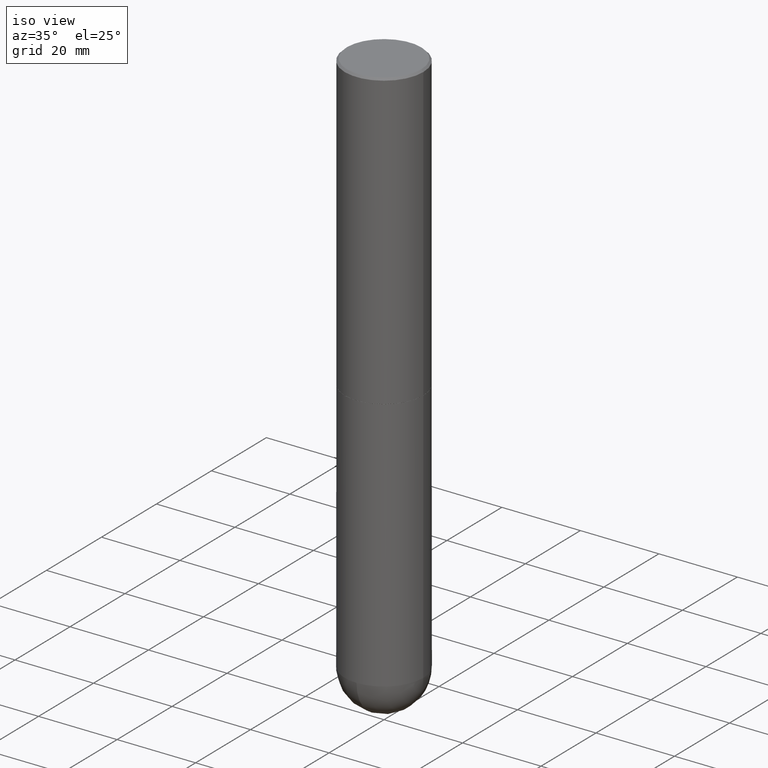
[diagram: clean part render]
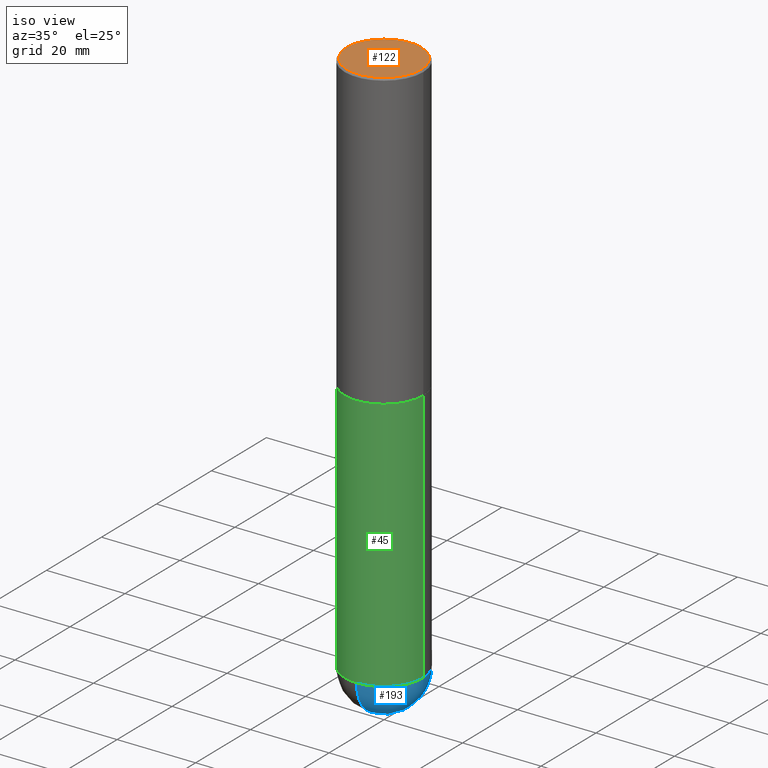
[diagram: same view with three faces highlighted in distinct colors, each labeled with its STEP entity id]
A machine part, iso view with three faces highlighted in distinct colors.
Their STEP definitions:

[orange] entity #122 — the highlighted planar face has unit normal (0, -0, -1).
#26 = EDGE_LOOP ( 'NONE', ( #404, #149 ) ) ;
#29 = EDGE_CURVE ( 'NONE', #170, #147, #301, .T. ) ;
#44 = CARTESIAN_POINT ( 'NONE',  ( 2.087702828670439561E-45, -2.980686340760894291E-31, -8.537024980200822558E-17 ) ) ;
#65 = PLANE ( 'NONE',  #356 ) ;
#89 = FACE_OUTER_BOUND ( 'NONE', #26, .T. ) ;
#90 = CIRCLE ( 'NONE', #127, 0.3737000000000000877 ) ;
#122 = ADVANCED_FACE ( 'NONE', ( #89 ), #65, .F. ) ;
#127 = AXIS2_PLACEMENT_3D ( 'NONE', #274, #233, #271 ) ;
#147 = VERTEX_POINT ( 'NONE', #295 ) ;
#149 = ORIENTED_EDGE ( 'NONE', *, *, #29, .T. ) ;
#170 = VERTEX_POINT ( 'NONE', #355 ) ;
#173 = DIRECTION ( 'NONE',  ( 1.000000000000000000, -6.982962677686266711E-15, 4.877734241229874566E-29 ) ) ;
#223 = CARTESIAN_POINT ( 'NONE',  ( 2.609533152651358198E-15, 0.3737000000000000877, -1.347451701226688099E-15 ) ) ;
#233 = DIRECTION ( 'NONE',  ( -2.445468806185136597E-29, 3.491481338843145583E-15, 1.000000000000000000 ) ) ;
#257 = DIRECTION ( 'NONE',  ( -2.445468806185136597E-29, 3.491481338843145583E-15, 1.000000000000000000 ) ) ;
#271 = DIRECTION ( 'NONE',  ( 1.000000000000000000, -6.982962677686266711E-15, 4.877734241229874566E-29 ) ) ;
#274 = CARTESIAN_POINT ( 'NONE',  ( 2.087702828670439561E-45, -2.980686340760894291E-31, -8.537024980200822558E-17 ) ) ;
#289 = EDGE_CURVE ( 'NONE', #147, #170, #90, .T. ) ;
#295 = CARTESIAN_POINT ( 'NONE',  ( -0.3737000000000000877, 2.644447966039789058E-15, -8.537024980202659124E-17 ) ) ;
#301 = CIRCLE ( 'NONE', #383, 0.3737000000000000877 ) ;
#346 = DIRECTION ( 'NONE',  ( -1.000000000000000000, 6.982962677686265922E-15, -4.876176775795935793E-29 ) ) ;
#355 = CARTESIAN_POINT ( 'NONE',  ( 0.3737000000000000877, -2.667287895133368753E-15, -8.537024980198977363E-17 ) ) ;
#356 = AXIS2_PLACEMENT_3D ( 'NONE', #223, #379, #346 ) ;
#379 = DIRECTION ( 'NONE',  ( 2.438088387897960049E-29, -3.491481338843145188E-15, -1.000000000000000000 ) ) ;
#383 = AXIS2_PLACEMENT_3D ( 'NONE', #44, #257, #173 ) ;
#404 = ORIENTED_EDGE ( 'NONE', *, *, #289, .T. ) ;

[blue] entity #193 — the highlighted spherical surface has radius 10 mm.
#6 = DIRECTION ( 'NONE',  ( 6.982962677686265922E-15, 1.000000000000000000, -2.775563112689116301E-15 ) ) ;
#10 = CARTESIAN_POINT ( 'NONE',  ( 1.412743020541493694E-28, -2.106901824243703318E-14, -5.905499999999999972 ) ) ;
#13 = EDGE_CURVE ( 'NONE', #343, #245, #139, .T. ) ;
#50 = ORIENTED_EDGE ( 'NONE', *, *, #322, .F. ) ;
#53 = DIRECTION ( 'NONE',  ( -1.000000000000000000, 7.105427357601001070E-15, -4.926315508542082329E-29 ) ) ;
#56 = VERTEX_POINT ( 'NONE', #319 ) ;
#64 = EDGE_CURVE ( 'NONE', #143, #56, #412, .T. ) ;
#83 = CIRCLE ( 'NONE', #107, 0.3937000000000001054 ) ;
#94 = CARTESIAN_POINT ( 'NONE',  ( 0.3937000000000001054, -1.752601430252398275E-14, -5.511800000000000033 ) ) ;
#95 = AXIS2_PLACEMENT_3D ( 'NONE', #407, #53, #283 ) ;
#107 = AXIS2_PLACEMENT_3D ( 'NONE', #328, #166, #162 ) ;
#139 = CIRCLE ( 'NONE', #95, 0.3937000000000001054 ) ;
#143 = VERTEX_POINT ( 'NONE', #94 ) ;
#148 = DIRECTION ( 'NONE',  ( 1.000000000000000000, -6.982962677686266711E-15, 0.000000000000000000 ) ) ;
#154 = AXIS2_PLACEMENT_3D ( 'NONE', #177, #381, #148 ) ;
#162 = DIRECTION ( 'NONE',  ( 6.982962677686265133E-15, 1.000000000000000000, 0.000000000000000000 ) ) ;
#166 = DIRECTION ( 'NONE',  ( 1.000000000000000000, -6.982962677686265922E-15, 4.883557194083112340E-29 ) ) ;
#177 = CARTESIAN_POINT ( 'NONE',  ( 1.347893496593123646E-28, -1.924434684343564878E-14, -5.511800000000000033 ) ) ;
#185 = ORIENTED_EDGE ( 'NONE', *, *, #64, .F. ) ;
#193 = ADVANCED_FACE ( 'NONE', ( #299 ), #204, .T. ) ;
#199 = EDGE_CURVE ( 'NONE', #343, #56, #83, .T. ) ;
#204 = SPHERICAL_SURFACE ( 'NONE', #335, 0.3937000000000001054 ) ;
#228 = EDGE_LOOP ( 'NONE', ( #400, #369, #185, #50 ) ) ;
#236 = DIRECTION ( 'NONE',  ( -2.445468806185136597E-29, 3.491481338843145583E-15, 1.000000000000000000 ) ) ;
#245 = VERTEX_POINT ( 'NONE', #384 ) ;
#270 = CARTESIAN_POINT ( 'NONE',  ( 1.314781518801735134E-28, -1.971852921157570065E-14, -5.511800000000000033 ) ) ;
#283 = DIRECTION ( 'NONE',  ( -7.105427357601001070E-15, -1.000000000000000000, 0.000000000000000000 ) ) ;
#299 = FACE_OUTER_BOUND ( 'NONE', #228, .T. ) ;
#300 = CARTESIAN_POINT ( 'NONE',  ( 1.347893496593123646E-28, -1.924434684343564878E-14, -5.511800000000000033 ) ) ;
#319 = CARTESIAN_POINT ( 'NONE',  ( 2.749192406205216928E-15, 0.3936999999999805655, -5.511800000000000921 ) ) ;
#322 = EDGE_CURVE ( 'NONE', #245, #143, #390, .T. ) ;
#328 = CARTESIAN_POINT ( 'NONE',  ( 1.314781518801735134E-28, -1.971852921157570065E-14, -5.511800000000000033 ) ) ;
#332 = DIRECTION ( 'NONE',  ( 1.000000000000000000, -6.982962677686266711E-15, 0.000000000000000000 ) ) ;
#335 = AXIS2_PLACEMENT_3D ( 'NONE', #270, #389, #6 ) ;
#343 = VERTEX_POINT ( 'NONE', #10 ) ;
#369 = ORIENTED_EDGE ( 'NONE', *, *, #199, .T. ) ;
#370 = AXIS2_PLACEMENT_3D ( 'NONE', #300, #236, #332 ) ;
#381 = DIRECTION ( 'NONE',  ( -2.445468806185136597E-29, 3.491481338843145583E-15, 1.000000000000000000 ) ) ;
#384 = CARTESIAN_POINT ( 'NONE',  ( -2.797406750687381075E-15, -0.3937000000000196454, -5.511799999999999145 ) ) ;
#389 = DIRECTION ( 'NONE',  ( -1.000000000000000000, 6.982962677686265922E-15, -4.883557194083112340E-29 ) ) ;
#390 = CIRCLE ( 'NONE', #370, 0.3937000000000001054 ) ;
#400 = ORIENTED_EDGE ( 'NONE', *, *, #13, .F. ) ;
#407 = CARTESIAN_POINT ( 'NONE',  ( 1.314781518801735134E-28, -1.971852921157570065E-14, -5.511800000000000033 ) ) ;
#412 = CIRCLE ( 'NONE', #154, 0.3937000000000001054 ) ;

[green] entity #45 — the highlighted cylindrical surface (partial cylindrical patch) has radius 10 mm, axis along (-0, 0, 1).
#1 = CYLINDRICAL_SURFACE ( 'NONE', #284, 0.3937000000000001054 ) ;
#28 = VECTOR ( 'NONE', #352, 39.37007874015748143 ) ;
#38 = DIRECTION ( 'NONE',  ( 1.000000000000000000, -6.982962677686267499E-15, 0.000000000000000000 ) ) ;
#41 = AXIS2_PLACEMENT_3D ( 'NONE', #157, #240, #38 ) ;
#45 = ADVANCED_FACE ( 'NONE', ( #214 ), #1, .T. ) ;
#49 = CIRCLE ( 'NONE', #96, 0.3937000000000001054 ) ;
#55 = VERTEX_POINT ( 'NONE', #320 ) ;
#68 = CARTESIAN_POINT ( 'NONE',  ( -0.3937000000000001054, 2.797406750687515181E-15, -1.936584745033357016E-29 ) ) ;
#73 = LINE ( 'NONE', #68, #28 ) ;
#81 = ORIENTED_EDGE ( 'NONE', *, *, #142, .F. ) ;
#94 = CARTESIAN_POINT ( 'NONE',  ( 0.3937000000000001054, -1.752601430252398275E-14, -5.511800000000000033 ) ) ;
#96 = AXIS2_PLACEMENT_3D ( 'NONE', #388, #196, #326 ) ;
#130 = DIRECTION ( 'NONE',  ( 1.000000000000000000, -6.982962677686266711E-15, 4.876176775795935793E-29 ) ) ;
#142 = EDGE_CURVE ( 'NONE', #249, #55, #234, .T. ) ;
#143 = VERTEX_POINT ( 'NONE', #94 ) ;
#151 = ORIENTED_EDGE ( 'NONE', *, *, #279, .F. ) ;
#157 = CARTESIAN_POINT ( 'NONE',  ( 7.220735744022852519E-29, -1.030929694920215502E-14, -2.952700000000000102 ) ) ;
#192 = DIRECTION ( 'NONE',  ( -2.445468806185136597E-29, 3.491481338843145583E-15, 1.000000000000000000 ) ) ;
#196 = DIRECTION ( 'NONE',  ( -2.445468806185136597E-29, 3.491481338843145583E-15, 1.000000000000000000 ) ) ;
#205 = CARTESIAN_POINT ( 'NONE',  ( -0.3937000000000000499, -1.197941514563138553E-14, -2.952700000000000102 ) ) ;
#212 = CARTESIAN_POINT ( 'NONE',  ( 0.3937000000000001054, -2.749192406205084005E-15, 1.919750796630860452E-29 ) ) ;
#214 = FACE_OUTER_BOUND ( 'NONE', #247, .T. ) ;
#234 = CIRCLE ( 'NONE', #41, 0.3937000000000000499 ) ;
#236 = DIRECTION ( 'NONE',  ( -2.445468806185136597E-29, 3.491481338843145583E-15, 1.000000000000000000 ) ) ;
#240 = DIRECTION ( 'NONE',  ( -2.445468806185136597E-29, 3.491481338843145583E-15, 1.000000000000000000 ) ) ;
#245 = VERTEX_POINT ( 'NONE', #384 ) ;
#247 = EDGE_LOOP ( 'NONE', ( #151, #277, #280, #401, #81 ) ) ;
#249 = VERTEX_POINT ( 'NONE', #205 ) ;
#277 = ORIENTED_EDGE ( 'NONE', *, *, #293, .T. ) ;
#278 = CARTESIAN_POINT ( 'NONE',  ( -0.3937000000000001054, -1.197941514563138553E-14, -5.511800000000000033 ) ) ;
#279 = EDGE_CURVE ( 'NONE', #362, #249, #73, .T. ) ;
#280 = ORIENTED_EDGE ( 'NONE', *, *, #322, .T. ) ;
#284 = AXIS2_PLACEMENT_3D ( 'NONE', #408, #192, #130 ) ;
#293 = EDGE_CURVE ( 'NONE', #362, #245, #49, .T. ) ;
#298 = VECTOR ( 'NONE', #304, 39.37007874015748143 ) ;
#300 = CARTESIAN_POINT ( 'NONE',  ( 1.347893496593123646E-28, -1.924434684343564878E-14, -5.511800000000000033 ) ) ;
#304 = DIRECTION ( 'NONE',  ( -2.445468806185136877E-29, 3.491481338843145188E-15, 1.000000000000000000 ) ) ;
#307 = LINE ( 'NONE', #212, #298 ) ;
#320 = CARTESIAN_POINT ( 'NONE',  ( 0.3937000000000000499, -1.305848935540723823E-14, -2.952700000000000102 ) ) ;
#322 = EDGE_CURVE ( 'NONE', #245, #143, #390, .T. ) ;
#326 = DIRECTION ( 'NONE',  ( 1.000000000000000000, -6.982962677686266711E-15, 0.000000000000000000 ) ) ;
#332 = DIRECTION ( 'NONE',  ( 1.000000000000000000, -6.982962677686266711E-15, 0.000000000000000000 ) ) ;
#345 = EDGE_CURVE ( 'NONE', #143, #55, #307, .T. ) ;
#352 = DIRECTION ( 'NONE',  ( -2.445468806185136877E-29, 3.491481338843145188E-15, 1.000000000000000000 ) ) ;
#362 = VERTEX_POINT ( 'NONE', #278 ) ;
#370 = AXIS2_PLACEMENT_3D ( 'NONE', #300, #236, #332 ) ;
#384 = CARTESIAN_POINT ( 'NONE',  ( -2.797406750687381075E-15, -0.3937000000000196454, -5.511799999999999145 ) ) ;
#388 = CARTESIAN_POINT ( 'NONE',  ( 1.347893496593123646E-28, -1.924434684343564878E-14, -5.511800000000000033 ) ) ;
#390 = CIRCLE ( 'NONE', #370, 0.3937000000000001054 ) ;
#401 = ORIENTED_EDGE ( 'NONE', *, *, #345, .T. ) ;
#408 = CARTESIAN_POINT ( 'NONE',  ( 0.000000000000000000, 0.000000000000000000, 0.000000000000000000 ) ) ;